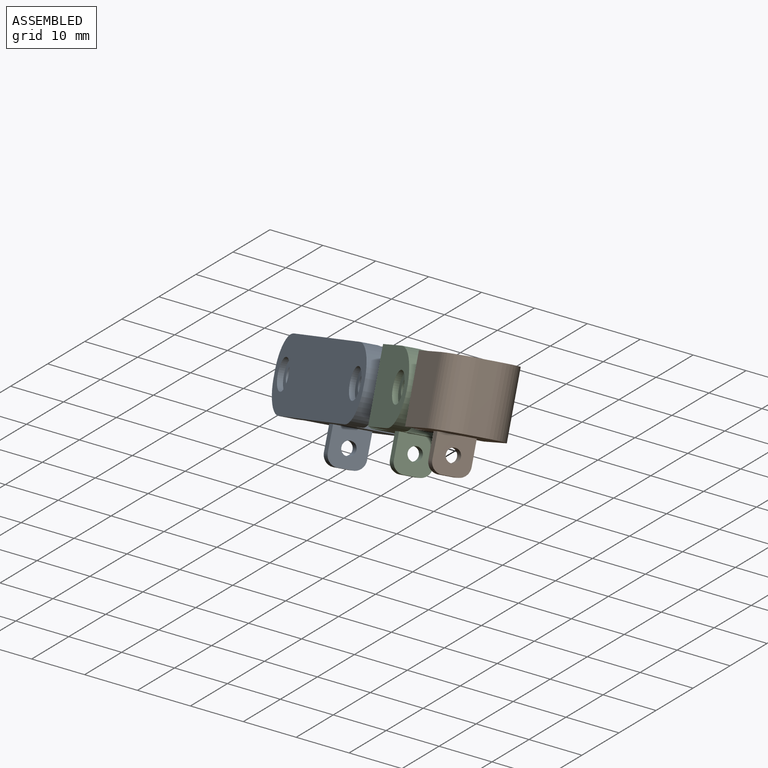
[diagram: assembled view]
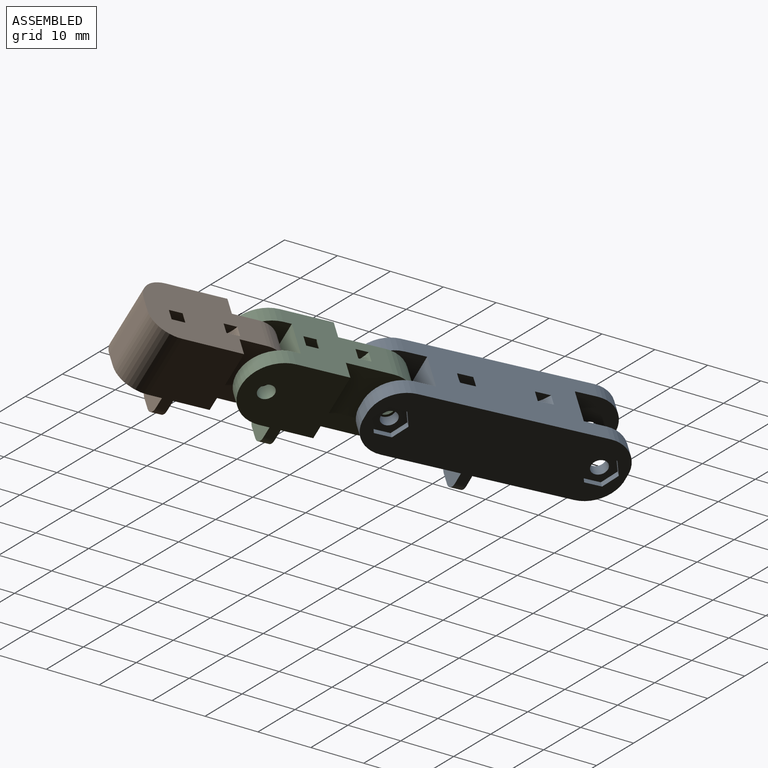
[diagram: assembled view, second angle]
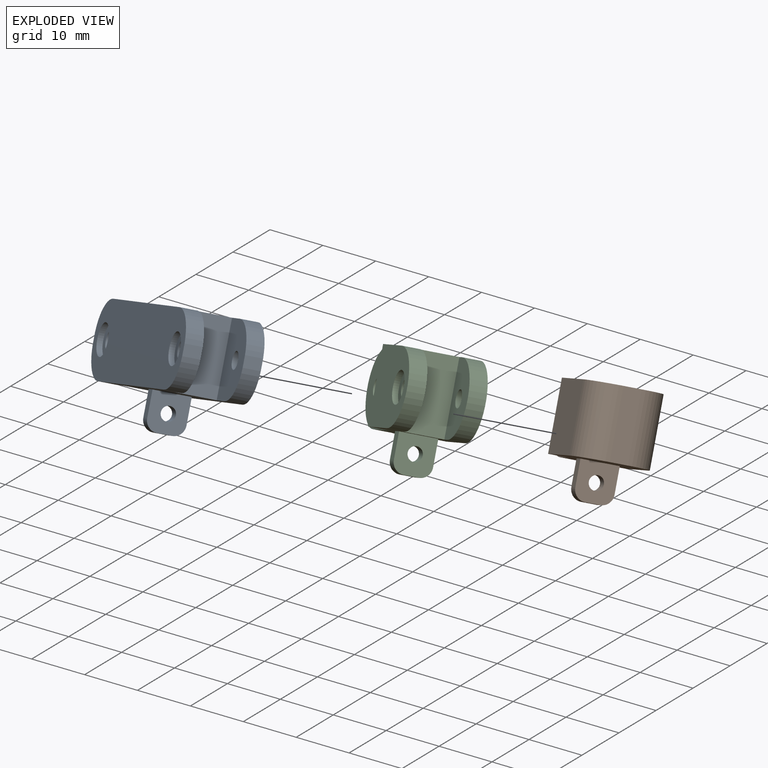
[diagram: exploded view]
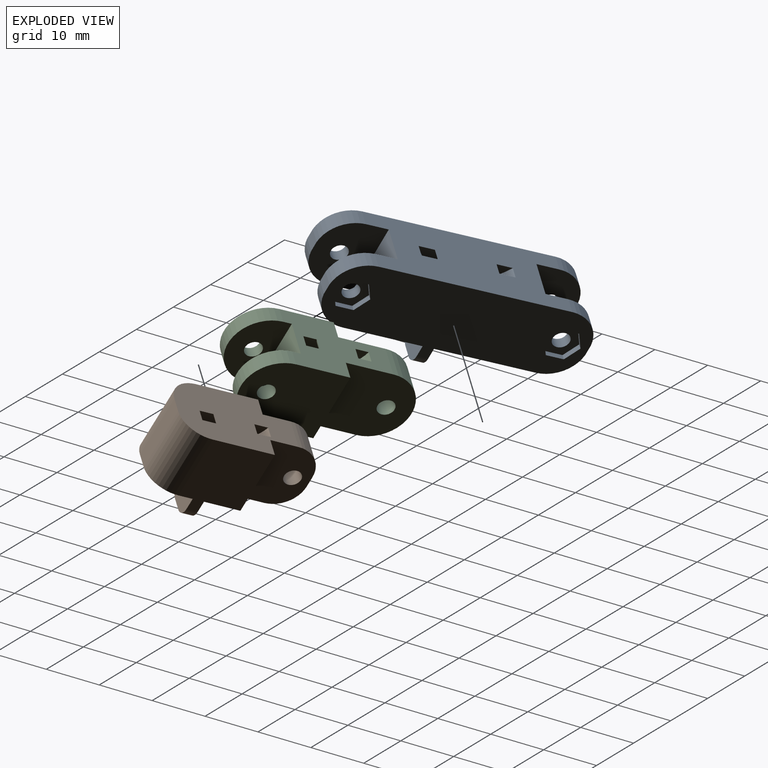
[diagram: exploded view, second angle]
ASSEMBLY  parts=3 mates=2
PART A: 56 faces, bbox 19.5x13x46 mm
  f0: plane 34.08x13mm, normal (-1,0,0), area 373.9mm2, adj f3,f9,f10,f11,f12,f13,f16,f17
  f1: cylinder r=1.5mm len=3mm, axis (0,1,0), area 18.8mm2, adj f13,f43
  f2: cylinder r=1.5mm len=3mm, axis (0,1,0), area 18.8mm2, adj f10,f41
  f3: plane 46x13mm, normal (0,1,0), area 515.2mm2, adj f0,f4,f5,f7,f20,f21,f22,f23
  f4: plane 3x2mm, normal (0,0,-1), area 6mm2, adj f3,f11,f22,f23
  f5: plane 3x2mm, normal (0,0,1), area 6mm2, adj f3,f12,f20,f21
  f6: plane 3x2mm, normal (0,0,1), area 6mm2, adj f9,f13,f18,f19
  f7: plane 34.08x13mm, normal (1,0,0), area 373.5mm2, adj f3,f9,f10,f11,f12,f13,f16,f17
  f8: plane 3x2mm, normal (0,0,-1), area 6mm2, adj f9,f10,f24,f25
  f9: plane 46x13mm, normal (0,-1,0), area 520.1mm2, adj f0,f6,f7,f8,f18,f19,f24,f25
  f10: plane 13x10mm, normal (0,1,0), area 107.7mm2, adj f0,f2,f7,f8,f16,f24,f25
  f11: plane 13x10mm, normal (0,-1,0), area 107.7mm2, adj f0,f4,f7,f14,f16,f22,f23
  f12: plane 13x10mm, normal (0,-1,0), area 107.7mm2, adj f0,f5,f7,f15,f17,f20,f21
  f13: plane 13x10mm, normal (0,1,0), area 107.7mm2, adj f0,f1,f6,f7,f17,f18,f19
  f14: cylinder r=1.5mm len=3mm, axis (0,1,0), area 18.8mm2, adj f11,f32
  f15: cylinder r=1.5mm len=3mm, axis (0,1,0), area 18.8mm2, adj f12,f39
  f16: plane 13x7mm, normal (0,0,-1), area 91mm2, adj f0,f7,f10,f11
  f17: plane 13x7mm, normal (0,0,1), area 91mm2, adj f0,f7,f12,f13
  f18: cylinder r=6mm len=5.96mm, axis (0,-1,0), area 26.7mm2, adj f0,f6,f9,f13
  f19: cylinder r=6mm len=5.96mm, axis (0,-1,0), area 26.7mm2, adj f6,f7,f9,f13
  f20: cylinder r=6mm len=5.96mm, axis (0,-1,0), area 26.7mm2, adj f0,f3,f5,f12
  f21: cylinder r=6mm len=5.96mm, axis (0,-1,0), area 26.7mm2, adj f3,f5,f7,f12
  f22: cylinder r=6mm len=5.96mm, axis (0,-1,0), area 26.7mm2, adj f3,f4,f7,f11
  f23: cylinder r=6mm len=5.96mm, axis (0,-1,0), area 26.7mm2, adj f0,f3,f4,f11
  f24: cylinder r=6mm len=5.96mm, axis (0,-1,0), area 26.7mm2, adj f7,f8,f9,f10
  f25: cylinder r=6mm len=5.96mm, axis (0,-1,0), area 26.7mm2, adj f0,f8,f9,f10
  f26: plane 2.75x1.59mm, normal (0.5,0,-0.87), area 3.2mm2, adj f3,f27,f31,f32
  f27: plane 2.75x1.59mm, normal (-0.5,0,-0.87), area 3.2mm2, adj f3,f26,f28,f32
  f28: plane 3.18x1mm, normal (-1,0,0), area 3.2mm2, adj f3,f27,f29,f32
  f29: plane 2.75x1.59mm, normal (-0.5,0,0.87), area 3.2mm2, adj f3,f28,f30,f32
  f30: plane 2.75x1.59mm, normal (0.5,0,0.87), area 3.2mm2, adj f3,f29,f31,f32
  f31: plane 3.18x1mm, normal (1,0,0), area 3.2mm2, adj f3,f26,f30,f32
  f32: plane 6.35x5.5mm, normal (0,1,0), area 19.1mm2, adj f14,f26,f27,f28,f29,f30,f31
  f33: plane 3.18x1mm, normal (1,0,0), area 3.2mm2, adj f3,f34,f38,f39
  f34: plane 2.75x1.6mm, normal (0.5,0,-0.86), area 3.2mm2, adj f3,f33,f35,f39
  f35: plane 2.76x1.58mm, normal (-0.5,0,-0.87), area 3.2mm2, adj f3,f34,f36,f39
  f36: plane 3.18x1mm, normal (-1,0,0), area 3.2mm2, adj f3,f35,f37,f39
  f37: plane 2.75x1.6mm, normal (-0.5,0,0.86), area 3.2mm2, adj f3,f36,f38,f39
  f38: plane 2.76x1.58mm, normal (0.5,0,0.87), area 3.2mm2, adj f3,f33,f37,f39
  f39: plane 6.35x5.51mm, normal (0,1,0), area 19.1mm2, adj f15,f33,f34,f35,f36,f37,f38
  f40: cylinder r=2.75mm len=5.5mm, axis (0,-1,0), area 17.3mm2, adj f9,f41
  f41: plane 5.5x5.5mm, normal (0,-1,0), area 16.7mm2, adj f2,f40
  f42: cylinder r=2.75mm len=5.5mm, axis (0,-1,0), area 17.3mm2, adj f9,f43
  f43: plane 5.5x5.5mm, normal (0,-1,0), area 16.7mm2, adj f1,f42
  f44: plane 6.5x6.5mm, normal (0,0,-1), area 35.6mm2, adj f7,f45,f47,f48,f49,f50,f51
  f45: plane 4.5x2mm, normal (0,1,0), area 9mm2, adj f7,f44,f46,f51
  f46: plane 6.5x6.5mm, normal (0,0,1), area 35.6mm2, adj f7,f45,f47,f48,f49,f50,f51
  f47: plane 4.5x2mm, normal (0,-1,0), area 9mm2, adj f7,f44,f46,f50
  f48: plane 2.5x2mm, normal (1,0,0), area 5mm2, adj f44,f46,f50,f51
  f49: cylinder r=1.25mm len=2.5mm, axis (0,0,-1), area 15.7mm2, adj f44,f46
  f50: cylinder r=2mm len=2mm, axis (0,0,1), area 6.3mm2, adj f44,f46,f47,f48
  f51: cylinder r=2mm len=2mm, axis (0,0,-1), area 6.3mm2, adj f44,f45,f46,f48
  f52: cylinder r=10mm len=16.57mm, axis (0,-1,0), area 43mm2, adj f0,f54,f55
  f53: cylinder r=7.8mm len=10.86mm, axis (0,-1,0), area 26.4mm2, adj f0,f54,f55
  f54: plane 16.57x4.4mm, normal (0,-1,0), area 34.8mm2, adj f0,f52,f53
  f55: plane 16.57x4.4mm, normal (0,1,0), area 34.8mm2, adj f0,f52,f53
PART B: 27 faces, bbox 13x18.5x26 mm
  f0: plane 21x13mm, normal (0,-1,0), area 216.5mm2, adj f3,f4,f5,f6,f7,f8,f9,f11
  f1: plane 6x2mm, normal (0,0,-1), area 12mm2, adj f6,f9,f13,f14
  f2: plane 21x13mm, normal (0,1,0), area 214.3mm2, adj f3,f4,f5,f6,f7,f8,f9,f11
  f3: plane 12x11mm, normal (1,0,0), area 132mm2, adj f0,f2,f8,f12
  f4: plane 12x11mm, normal (-1,0,0), area 132mm2, adj f0,f2,f7,f11
  f5: plane 12x3mm, normal (0,0,1), area 36mm2, adj f0,f2,f11,f12
  f6: plane 12x10mm, normal (-1,0,0), area 102.2mm2, adj f0,f1,f2,f7,f10,f13,f14
  f7: plane 12x3.5mm, normal (0,0,-1), area 42mm2, adj f0,f2,f4,f6
  f8: plane 12x3.5mm, normal (0,0,-1), area 42mm2, adj f0,f2,f3,f9
  f9: plane 12x10mm, normal (1,0,0), area 102.2mm2, adj f0,f1,f2,f8,f10,f13,f14
  f10: cylinder r=1.5mm len=6mm, axis (-1,0,0), area 56.5mm2, adj f6,f9
  f11: cylinder r=5mm len=12mm, axis (0,-1,0), area 94.2mm2, adj f0,f2,f4,f5
  f12: cylinder r=5mm len=12mm, axis (0,1,0), area 94.2mm2, adj f0,f2,f3,f5
  f13: cylinder r=5mm len=6mm, axis (1,0,0), area 47.1mm2, adj f1,f2,f6,f9
  f14: cylinder r=5mm len=6mm, axis (1,0,0), area 47.1mm2, adj f0,f1,f6,f9
  f15: plane 6.5x6.5mm, normal (0,0,-1), area 35.6mm2, adj f2,f16,f18,f19,f20,f21,f22
  f16: plane 4.5x2mm, normal (-1,0,0), area 9mm2, adj f2,f15,f17,f22
  f17: plane 6.5x6.5mm, normal (0,0,1), area 35.6mm2, adj f2,f16,f18,f19,f20,f21,f22
  f18: plane 4.5x2mm, normal (1,0,0), area 9mm2, adj f2,f15,f17,f21
  f19: plane 2.5x2mm, normal (0,1,0), area 5mm2, adj f15,f17,f21,f22
  f20: cylinder r=1.25mm len=2.5mm, axis (0,0,-1), area 15.7mm2, adj f15,f17
  f21: cylinder r=2mm len=2mm, axis (0,0,1), area 6.3mm2, adj f15,f17,f18,f19
  f22: cylinder r=2mm len=2mm, axis (0,0,-1), area 6.3mm2, adj f15,f16,f17,f19
  f23: cylinder r=6.5mm len=12.16mm, axis (1,0,0), area 34.6mm2, adj f0,f25,f26
  f24: cylinder r=4.3mm len=7.27mm, axis (1,0,0), area 19mm2, adj f0,f25,f26
  f25: plane 12.16x4.2mm, normal (1,0,0), area 26.8mm2, adj f0,f23,f24
  f26: plane 12.16x4.2mm, normal (-1,0,0), area 26.8mm2, adj f0,f23,f24
PART C: 31 faces, bbox 19.5x13x31 mm
  f0: plane 18x13mm, normal (1,0,0), area 154.4mm2, adj f2,f3,f4,f5,f6,f7,f10,f11
  f1: plane 18x13mm, normal (-1,0,0), area 151.7mm2, adj f2,f3,f4,f5,f6,f7,f10,f11
  f2: plane 16.1x13mm, normal (0,1,0), area 167.4mm2, adj f0,f1,f12,f15,f17
  f3: plane 14.9x13mm, normal (0,-1,0), area 168.5mm2, adj f0,f1,f11,f13,f16
  f4: plane 14.9x13mm, normal (0,1,0), area 168.5mm2, adj f0,f1,f12,f13,f16
  f5: plane 16.1x13mm, normal (0,-1,0), area 184.1mm2, adj f0,f1,f9,f11,f14
  f6: plane 13x8mm, normal (0,-1,0), area 78.8mm2, adj f0,f1,f8,f10,f15
  f7: plane 13x8mm, normal (0,1,0), area 78.8mm2, adj f0,f1,f9,f10,f14
  f8: cylinder r=1.5mm len=3mm, axis (0,1,0), area 18.8mm2, adj f6,f18
  f9: cylinder r=1.5mm len=3mm, axis (0,1,0), area 28.3mm2, adj f5,f7
  f10: plane 13x7mm, normal (0,0,1), area 91mm2, adj f0,f1,f6,f7
  f11: plane 13x3.5mm, normal (0,0,-1), area 45.5mm2, adj f0,f1,f3,f5
  f12: plane 13x3.5mm, normal (0,0,-1), area 45.5mm2, adj f0,f1,f2,f4
  f13: cylinder r=1.5mm len=6mm, axis (0,1,0), area 56.5mm2, adj f3,f4
  f14: cylinder r=6.5mm len=13mm, axis (0,1,0), area 61.3mm2, adj f0,f1,f5,f7
  f15: cylinder r=6.5mm len=13mm, axis (0,1,0), area 61.3mm2, adj f0,f1,f2,f6
  f16: cylinder r=6.5mm len=13mm, axis (0,1,0), area 122.5mm2, adj f0,f1,f3,f4
  f17: cylinder r=2.75mm len=5.5mm, axis (0,1,0), area 17.3mm2, adj f2,f18
  f18: plane 5.5x5.5mm, normal (0,1,0), area 16.7mm2, adj f8,f17
  f19: plane 6.5x6.5mm, normal (0,0,-1), area 35.6mm2, adj f1,f20,f22,f23,f24,f25,f26
  f20: plane 4.5x2mm, normal (0,-1,0), area 9mm2, adj f1,f19,f21,f25
  f21: plane 6.5x6.5mm, normal (0,0,1), area 35.6mm2, adj f1,f20,f22,f23,f24,f25,f26
  f22: plane 4.5x2mm, normal (0,1,0), area 9mm2, adj f1,f19,f21,f24
  f23: plane 2.5x2mm, normal (-1,0,0), area 5mm2, adj f19,f21,f24,f25
  f24: cylinder r=2mm len=2mm, axis (0,0,1), area 6.3mm2, adj f19,f21,f22,f23
  f25: cylinder r=2mm len=2mm, axis (0,0,-1), area 6.3mm2, adj f19,f20,f21,f23
  f26: cylinder r=1.25mm len=2.5mm, axis (0,0,1), area 15.7mm2, adj f19,f21
  f27: cylinder r=6mm len=11.57mm, axis (0,-1,0), area 34.3mm2, adj f0,f29,f30
  f28: cylinder r=3.8mm len=6.89mm, axis (0,-1,0), area 19mm2, adj f0,f29,f30
  f29: plane 11.57x4.4mm, normal (0,-1,0), area 26.7mm2, adj f0,f27,f28
  f30: plane 11.57x4.4mm, normal (0,1,0), area 26.7mm2, adj f0,f27,f28
PLACE A rot(axis=(0.13,0.82,-0.56),85.3deg) t=(-106.18,35.57,50.9)mm
PLACE B rot(axis=(-0.34,0.46,-0.82),150.4deg) t=(-78.8,15.75,64.68)mm
PLACE C rot(axis=(0.6,-0.09,0.8),135.6deg) t=(-95.5,27.82,56.24)mm
MATE revolute B.f10 <-> C.f8  axis (-0.65,-0.7,0.29) through (-87.86,18.78,61.95)mm
MATE revolute C.f13 <-> A.f1  axis (0.65,0.7,-0.29) through (-100.44,34.91,51.88)mm
